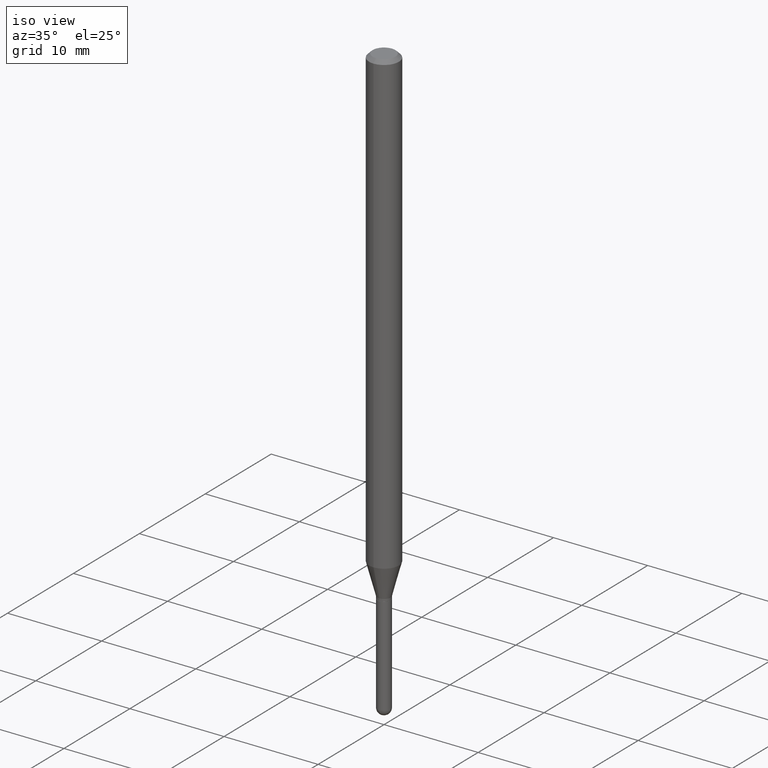
[diagram: clean part render]
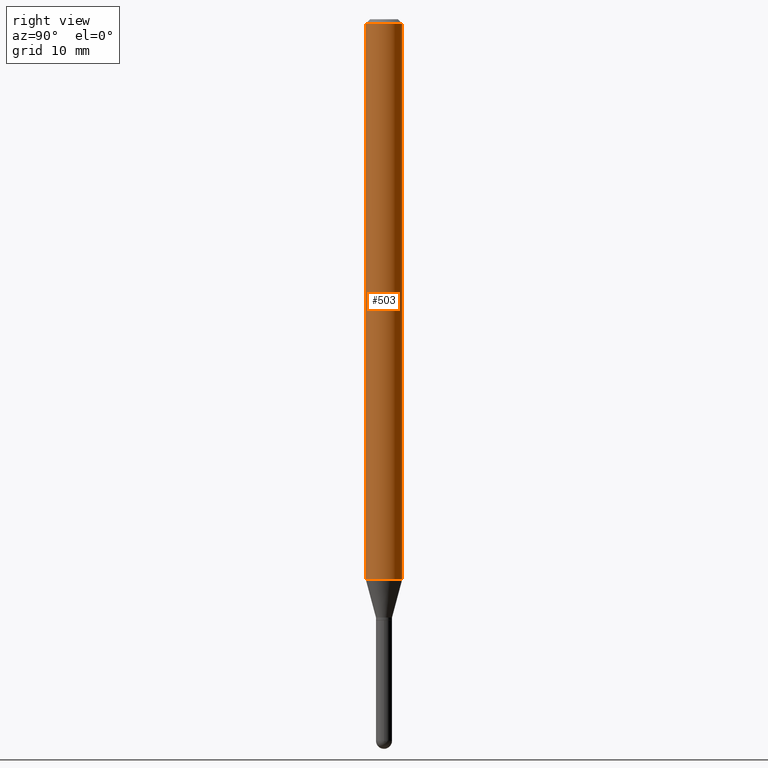
[diagram: tour spotlight — one face highlighted and labeled with its STEP entity id]
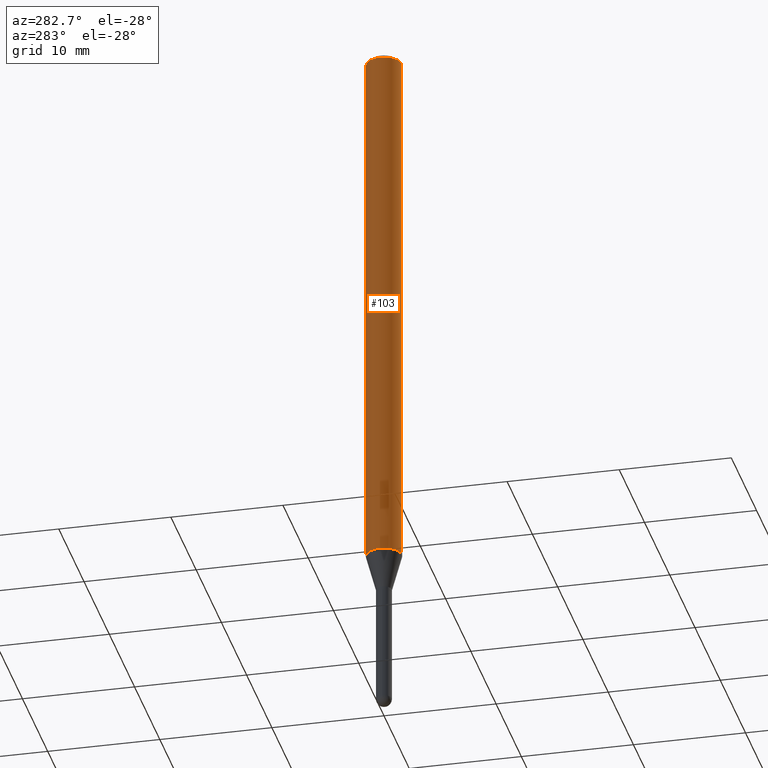
[diagram: tour spotlight — one face highlighted and labeled with its STEP entity id]
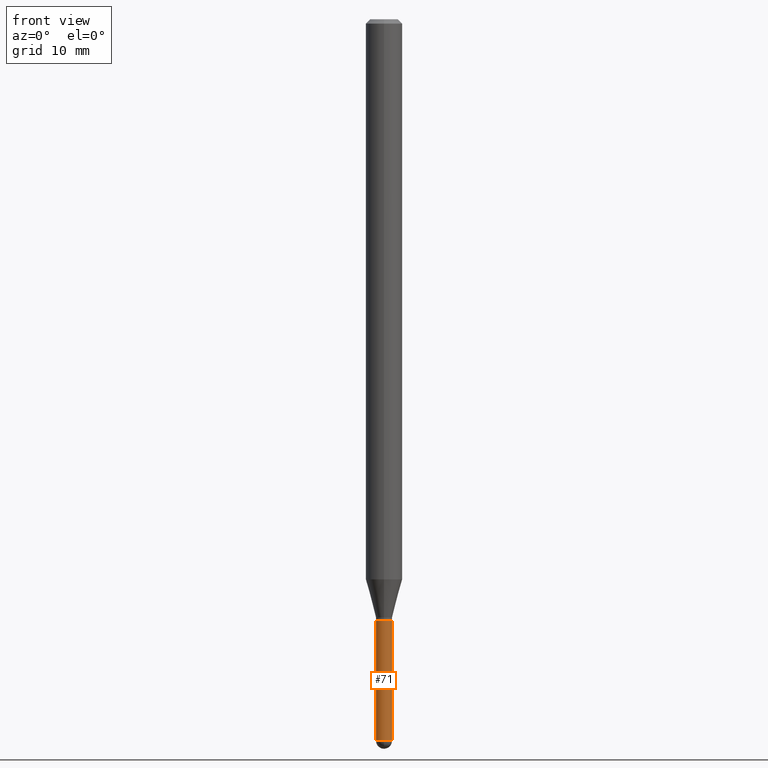
[diagram: tour spotlight — one face highlighted and labeled with its STEP entity id]
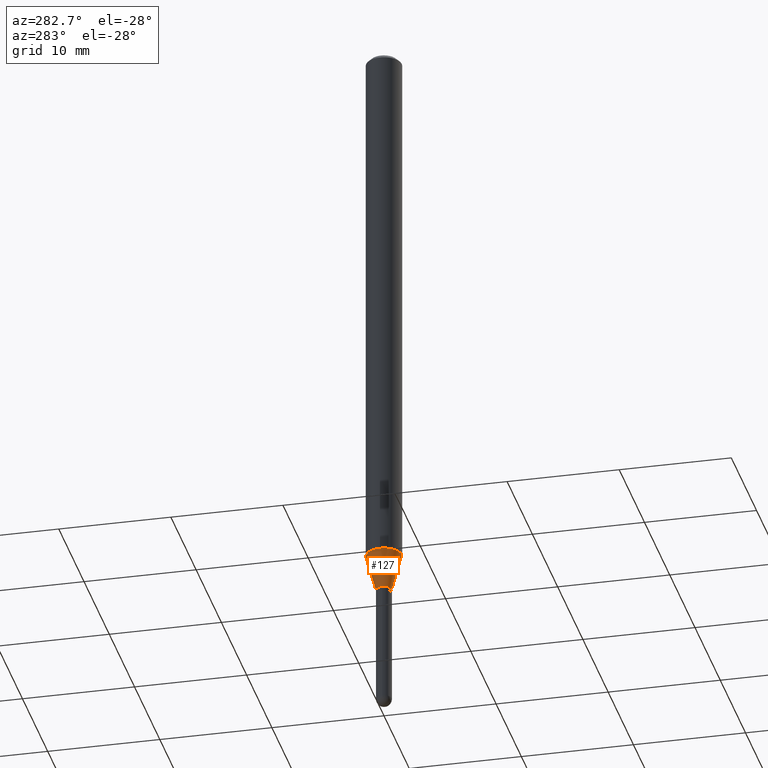
[diagram: tour spotlight — one face highlighted and labeled with its STEP entity id]
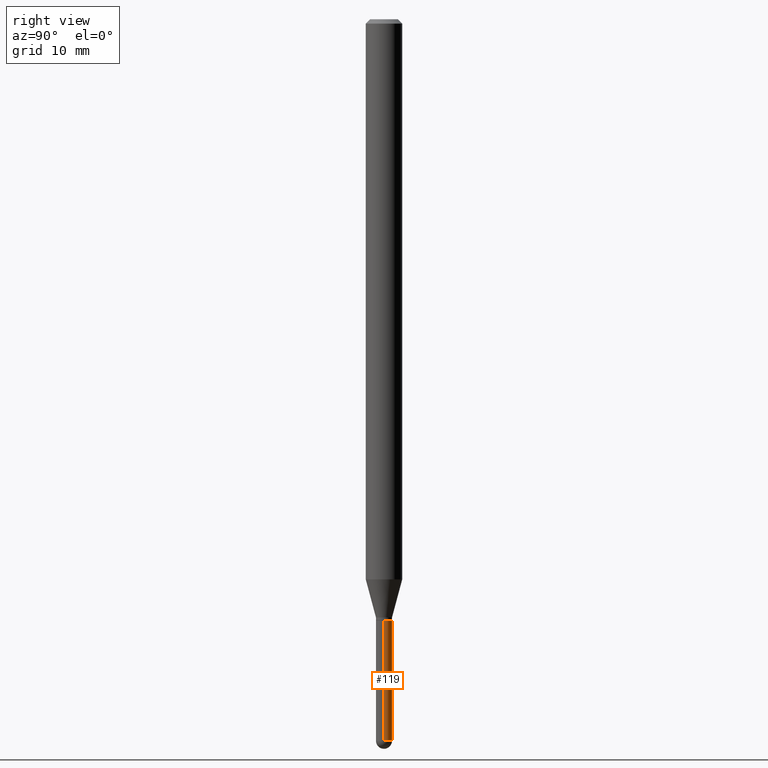
[diagram: tour spotlight — one face highlighted and labeled with its STEP entity id]
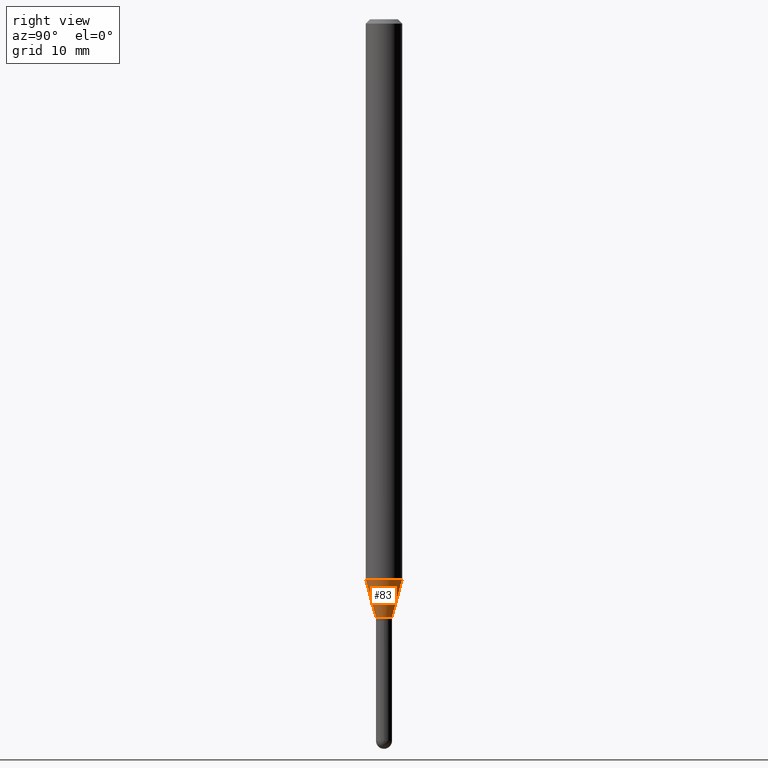
[diagram: tour spotlight — one face highlighted and labeled with its STEP entity id]
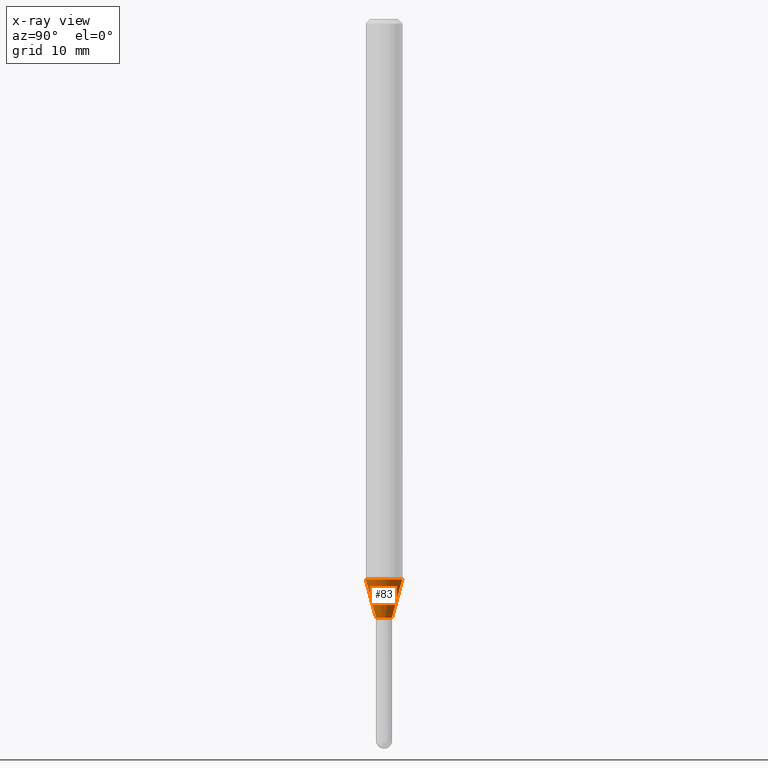
[diagram: x-ray of the same camera — body ghosted, this tour face saturated]
A machine part: a face-by-face anatomy tour. The part has 17 B-rep faces; the first image is the clean iso view, then the 6 largest visible faces are spotlighted one at a time (largest first), each with its STEP entity span.

Face 1 — right view, entity #503. In plain terms, the highlighted cylindrical surface (edge-blend (fillet) strip) has radius 1.5875 mm, axis along (-0, 0, 1).
Definition (entity closure, byte-faithful):
#20 = CARTESIAN_POINT ( 'NONE',  ( 0.000000000000000000, 0.000000000000000000, 0.000000000000000000 ) ) ;
#30 = CARTESIAN_POINT ( 'NONE',  ( 4.440892098501092576E-16, 0.06249999999999326927, -1.919378221735088985 ) ) ;
#33 = EDGE_CURVE ( 'NONE', #144, #500, #44, .T. ) ;
#44 = CIRCLE ( 'NONE', #334, 0.06250000000000000000 ) ;
#85 = VECTOR ( 'NONE', #406, 39.37007874015748143 ) ;
#88 = CARTESIAN_POINT ( 'NONE',  ( -4.364351673553448308E-16, -0.06250000000000671685, -1.919378221735088319 ) ) ;
#110 = CYLINDRICAL_SURFACE ( 'NONE', #368, 0.06250000000000000000 ) ;
#111 = EDGE_CURVE ( 'NONE', #504, #380, #466, .T. ) ;
#117 = DIRECTION ( 'NONE',  ( -2.445461654666002137E-29, 3.491491580225585399E-15, 1.000000000000000000 ) ) ;
#128 = DIRECTION ( 'NONE',  ( -6.982962677686265922E-15, -1.000000000000000000, 3.483106191921935554E-15 ) ) ;
#143 = EDGE_CURVE ( 'NONE', #144, #504, #247, .T. ) ;
#144 = VERTEX_POINT ( 'NONE', #88 ) ;
#155 = ORIENTED_EDGE ( 'NONE', *, *, #111, .F. ) ;
#168 = CARTESIAN_POINT ( 'NONE',  ( -4.364351673553916201E-16, -0.06250000000000000000, 2.182182237640990874E-16 ) ) ;
#171 = AXIS2_PLACEMENT_3D ( 'NONE', #355, #438, #128 ) ;
#184 = ORIENTED_EDGE ( 'NONE', *, *, #33, .T. ) ;
#247 = LINE ( 'NONE', #168, #85 ) ;
#248 = EDGE_LOOP ( 'NONE', ( #184, #320, #155, #292 ) ) ;
#252 = LINE ( 'NONE', #404, #316 ) ;
#266 = EDGE_CURVE ( 'NONE', #500, #380, #252, .T. ) ;
#292 = ORIENTED_EDGE ( 'NONE', *, *, #143, .F. ) ;
#293 = DIRECTION ( 'NONE',  ( -6.982962677686265922E-15, -1.000000000000000000, 3.491491580225585399E-15 ) ) ;
#307 = CARTESIAN_POINT ( 'NONE',  ( 4.693765842054179356E-29, -6.701492900456418580E-15, -1.919378221735088763 ) ) ;
#316 = VECTOR ( 'NONE', #399, 39.37007874015748143 ) ;
#320 = ORIENTED_EDGE ( 'NONE', *, *, #266, .T. ) ;
#324 = CARTESIAN_POINT ( 'NONE',  ( 4.440892098501098492E-16, 0.06249999999999995143, -0.01500000000000022669 ) ) ;
#334 = AXIS2_PLACEMENT_3D ( 'NONE', #307, #117, #426 ) ;
#355 = CARTESIAN_POINT ( 'NONE',  ( 3.668192481999005413E-31, -5.237237370338381057E-17, -0.01500000000000000812 ) ) ;
#368 = AXIS2_PLACEMENT_3D ( 'NONE', #20, #419, #293 ) ;
#380 = VERTEX_POINT ( 'NONE', #324 ) ;
#399 = DIRECTION ( 'NONE',  ( -2.445461654666002417E-29, 3.491491580225585005E-15, 1.000000000000000000 ) ) ;
#404 = CARTESIAN_POINT ( 'NONE',  ( 4.440892098500625669E-16, 0.06250000000000000000, -2.182182237640990874E-16 ) ) ;
#406 = DIRECTION ( 'NONE',  ( -2.445461654666002417E-29, 3.491491580225585005E-15, 1.000000000000000000 ) ) ;
#419 = DIRECTION ( 'NONE',  ( -2.445461654666002137E-29, 3.491491580225585399E-15, 1.000000000000000000 ) ) ;
#426 = DIRECTION ( 'NONE',  ( -6.982962677686265922E-15, -1.000000000000000000, 4.370956789862821150E-15 ) ) ;
#438 = DIRECTION ( 'NONE',  ( -2.445461654666002137E-29, 3.491491580225585399E-15, 1.000000000000000000 ) ) ;
#457 = FACE_OUTER_BOUND ( 'NONE', #248, .T. ) ;
#466 = CIRCLE ( 'NONE', #171, 0.06250000000000000000 ) ;
#491 = CARTESIAN_POINT ( 'NONE',  ( -4.364351673553912750E-16, -0.06250000000000005551, -0.01499999999999979128 ) ) ;
#500 = VERTEX_POINT ( 'NONE', #30 ) ;
#503 = ADVANCED_FACE ( 'NONE', ( #457 ), #110, .T. ) ;
#504 = VERTEX_POINT ( 'NONE', #491 ) ;

Face 2 — auxiliary view, entity #103. In plain terms, the highlighted cylindrical surface (edge-blend (fillet) strip) has radius 1.5875 mm, axis along (-0, 0, 1).
Definition (entity closure, byte-faithful):
#30 = CARTESIAN_POINT ( 'NONE',  ( 4.440892098501092576E-16, 0.06249999999999326927, -1.919378221735088985 ) ) ;
#60 = ORIENTED_EDGE ( 'NONE', *, *, #143, .T. ) ;
#77 = CIRCLE ( 'NONE', #148, 0.06250000000000000000 ) ;
#85 = VECTOR ( 'NONE', #406, 39.37007874015748143 ) ;
#88 = CARTESIAN_POINT ( 'NONE',  ( -4.364351673553448308E-16, -0.06250000000000671685, -1.919378221735088319 ) ) ;
#96 = CARTESIAN_POINT ( 'NONE',  ( 3.668192481999005413E-31, -5.237237370338381057E-17, -0.01500000000000000812 ) ) ;
#103 = ADVANCED_FACE ( 'NONE', ( #314 ), #254, .T. ) ;
#131 = CARTESIAN_POINT ( 'NONE',  ( 4.693765842054179356E-29, -6.701492900456418580E-15, -1.919378221735088763 ) ) ;
#143 = EDGE_CURVE ( 'NONE', #144, #504, #247, .T. ) ;
#144 = VERTEX_POINT ( 'NONE', #88 ) ;
#147 = ORIENTED_EDGE ( 'NONE', *, *, #390, .F. ) ;
#148 = AXIS2_PLACEMENT_3D ( 'NONE', #96, #485, #364 ) ;
#161 = EDGE_LOOP ( 'NONE', ( #498, #344, #60, #147 ) ) ;
#166 = EDGE_CURVE ( 'NONE', #500, #144, #276, .T. ) ;
#168 = CARTESIAN_POINT ( 'NONE',  ( -4.364351673553916201E-16, -0.06250000000000000000, 2.182182237640990874E-16 ) ) ;
#245 = DIRECTION ( 'NONE',  ( -6.982962677686265922E-15, -1.000000000000000000, 4.370956789862821150E-15 ) ) ;
#247 = LINE ( 'NONE', #168, #85 ) ;
#249 = AXIS2_PLACEMENT_3D ( 'NONE', #362, #398, #352 ) ;
#252 = LINE ( 'NONE', #404, #316 ) ;
#254 = CYLINDRICAL_SURFACE ( 'NONE', #249, 0.06250000000000000000 ) ;
#266 = EDGE_CURVE ( 'NONE', #500, #380, #252, .T. ) ;
#276 = CIRCLE ( 'NONE', #434, 0.06250000000000000000 ) ;
#314 = FACE_OUTER_BOUND ( 'NONE', #161, .T. ) ;
#316 = VECTOR ( 'NONE', #399, 39.37007874015748143 ) ;
#324 = CARTESIAN_POINT ( 'NONE',  ( 4.440892098501098492E-16, 0.06249999999999995143, -0.01500000000000022669 ) ) ;
#344 = ORIENTED_EDGE ( 'NONE', *, *, #166, .T. ) ;
#352 = DIRECTION ( 'NONE',  ( -6.982962677686265922E-15, -1.000000000000000000, 3.491491580225585399E-15 ) ) ;
#362 = CARTESIAN_POINT ( 'NONE',  ( 0.000000000000000000, 0.000000000000000000, 0.000000000000000000 ) ) ;
#364 = DIRECTION ( 'NONE',  ( -6.982962677686265922E-15, -1.000000000000000000, 3.483106191921935554E-15 ) ) ;
#380 = VERTEX_POINT ( 'NONE', #324 ) ;
#390 = EDGE_CURVE ( 'NONE', #380, #504, #77, .T. ) ;
#396 = DIRECTION ( 'NONE',  ( -2.445461654666002137E-29, 3.491491580225585399E-15, 1.000000000000000000 ) ) ;
#398 = DIRECTION ( 'NONE',  ( -2.445461654666002137E-29, 3.491491580225585399E-15, 1.000000000000000000 ) ) ;
#399 = DIRECTION ( 'NONE',  ( -2.445461654666002417E-29, 3.491491580225585005E-15, 1.000000000000000000 ) ) ;
#404 = CARTESIAN_POINT ( 'NONE',  ( 4.440892098500625669E-16, 0.06250000000000000000, -2.182182237640990874E-16 ) ) ;
#406 = DIRECTION ( 'NONE',  ( -2.445461654666002417E-29, 3.491491580225585005E-15, 1.000000000000000000 ) ) ;
#434 = AXIS2_PLACEMENT_3D ( 'NONE', #131, #396, #245 ) ;
#485 = DIRECTION ( 'NONE',  ( -2.445461654666002137E-29, 3.491491580225585399E-15, 1.000000000000000000 ) ) ;
#491 = CARTESIAN_POINT ( 'NONE',  ( -4.364351673553912750E-16, -0.06250000000000005551, -0.01499999999999979128 ) ) ;
#498 = ORIENTED_EDGE ( 'NONE', *, *, #266, .F. ) ;
#500 = VERTEX_POINT ( 'NONE', #30 ) ;
#504 = VERTEX_POINT ( 'NONE', #491 ) ;

Face 3 — front view, entity #71. In plain terms, the highlighted cylindrical surface (edge-blend (fillet) strip) has radius 0.6985 mm, axis along (-0, 0, 1).
Definition (entity closure, byte-faithful):
#3 = CARTESIAN_POINT ( 'NONE',  ( 0.02750000000000000014, -1.920314736363723444E-16, 1.340948613343882413E-30 ) ) ;
#18 = AXIS2_PLACEMENT_3D ( 'NONE', #472, #323, #279 ) ;
#25 = VERTEX_POINT ( 'NONE', #310 ) ;
#71 = ADVANCED_FACE ( 'NONE', ( #163 ), #509, .T. ) ;
#72 = CIRCLE ( 'NONE', #505, 0.02750000000000000014 ) ;
#87 = VERTEX_POINT ( 'NONE', #446 ) ;
#92 = DIRECTION ( 'NONE',  ( -2.445468806185136877E-29, 3.491481338843145188E-15, 1.000000000000000000 ) ) ;
#95 = DIRECTION ( 'NONE',  ( 1.000000000000000000, -6.982962677686279332E-15, 0.000000000000000000 ) ) ;
#100 = VERTEX_POINT ( 'NONE', #435 ) ;
#105 = AXIS2_PLACEMENT_3D ( 'NONE', #255, #243, #215 ) ;
#112 = DIRECTION ( 'NONE',  ( 1.000000000000000000, -6.982962677686279332E-15, 0.000000000000000000 ) ) ;
#121 = VECTOR ( 'NONE', #330, 39.37007874015748143 ) ;
#124 = ORIENTED_EDGE ( 'NONE', *, *, #370, .T. ) ;
#135 = LINE ( 'NONE', #284, #121 ) ;
#163 = FACE_OUTER_BOUND ( 'NONE', #232, .T. ) ;
#181 = EDGE_CURVE ( 'NONE', #377, #100, #72, .T. ) ;
#215 = DIRECTION ( 'NONE',  ( 1.000000000000000000, -6.982962677686279332E-15, 0.000000000000000000 ) ) ;
#218 = EDGE_CURVE ( 'NONE', #87, #300, #135, .T. ) ;
#232 = EDGE_LOOP ( 'NONE', ( #478, #400, #359, #124, #309 ) ) ;
#242 = CARTESIAN_POINT ( 'NONE',  ( 6.046421623292748621E-29, -8.632687610289675147E-15, -2.472499999999999254 ) ) ;
#243 = DIRECTION ( 'NONE',  ( -2.445468806185136597E-29, 3.491481338843145583E-15, 1.000000000000000000 ) ) ;
#255 = CARTESIAN_POINT ( 'NONE',  ( 5.037665740741381905E-29, -7.192451558016880271E-15, -2.060000000000000053 ) ) ;
#279 = DIRECTION ( 'NONE',  ( 1.000000000000000000, -6.982962677686266711E-15, 4.876176775795935793E-29 ) ) ;
#280 = LINE ( 'NONE', #3, #459 ) ;
#281 = DIRECTION ( 'NONE',  ( -2.445468806185136597E-29, 3.491481338843145583E-15, 1.000000000000000000 ) ) ;
#282 = CARTESIAN_POINT ( 'NONE',  ( -1.953992523339674261E-16, -0.02750000000000868070, -2.472499999999999254 ) ) ;
#284 = CARTESIAN_POINT ( 'NONE',  ( -0.02750000000000000014, 1.953992523340275521E-16, -1.352707149820099181E-30 ) ) ;
#294 = CARTESIAN_POINT ( 'NONE',  ( 6.046421623292748621E-29, -8.632687610289675147E-15, -2.472499999999999254 ) ) ;
#300 = VERTEX_POINT ( 'NONE', #315 ) ;
#303 = EDGE_CURVE ( 'NONE', #300, #25, #348, .T. ) ;
#309 = ORIENTED_EDGE ( 'NONE', *, *, #303, .F. ) ;
#310 = CARTESIAN_POINT ( 'NONE',  ( 0.02750000000000000014, -7.384483031653253552E-15, -2.060000000000000053 ) ) ;
#315 = CARTESIAN_POINT ( 'NONE',  ( -0.02750000000000000014, -7.717170331819249590E-15, -2.060000000000000053 ) ) ;
#323 = DIRECTION ( 'NONE',  ( -2.445468806185136597E-29, 3.491481338843145583E-15, 1.000000000000000000 ) ) ;
#326 = CIRCLE ( 'NONE', #468, 0.02750000000000000014 ) ;
#330 = DIRECTION ( 'NONE',  ( -2.445468806185136877E-29, 3.491481338843145188E-15, 1.000000000000000000 ) ) ;
#348 = CIRCLE ( 'NONE', #105, 0.02750000000000000014 ) ;
#359 = ORIENTED_EDGE ( 'NONE', *, *, #181, .T. ) ;
#370 = EDGE_CURVE ( 'NONE', #100, #25, #280, .T. ) ;
#377 = VERTEX_POINT ( 'NONE', #282 ) ;
#400 = ORIENTED_EDGE ( 'NONE', *, *, #432, .T. ) ;
#410 = DIRECTION ( 'NONE',  ( -2.445468806185136597E-29, 3.491481338843145583E-15, 1.000000000000000000 ) ) ;
#432 = EDGE_CURVE ( 'NONE', #87, #377, #326, .T. ) ;
#435 = CARTESIAN_POINT ( 'NONE',  ( 0.02750000000000000014, -8.104601057789650990E-15, -2.472499999999999254 ) ) ;
#446 = CARTESIAN_POINT ( 'NONE',  ( -0.02750000000000000014, -7.717170331819249590E-15, -2.472499999999999254 ) ) ;
#459 = VECTOR ( 'NONE', #92, 39.37007874015748143 ) ;
#468 = AXIS2_PLACEMENT_3D ( 'NONE', #294, #410, #112 ) ;
#472 = CARTESIAN_POINT ( 'NONE',  ( 0.000000000000000000, 0.000000000000000000, 0.000000000000000000 ) ) ;
#478 = ORIENTED_EDGE ( 'NONE', *, *, #218, .F. ) ;
#505 = AXIS2_PLACEMENT_3D ( 'NONE', #242, #281, #95 ) ;
#509 = CYLINDRICAL_SURFACE ( 'NONE', #18, 0.02750000000000000014 ) ;

Face 4 — auxiliary view, entity #127. In plain terms, the highlighted conical surface has half-angle 15 deg.
Definition (entity closure, byte-faithful):
#9 = ORIENTED_EDGE ( 'NONE', *, *, #313, .F. ) ;
#26 = LINE ( 'NONE', #66, #394 ) ;
#30 = CARTESIAN_POINT ( 'NONE',  ( 4.440892098501092576E-16, 0.06249999999999326927, -1.919378221735088985 ) ) ;
#43 = VECTOR ( 'NONE', #397, 39.37007874015748143 ) ;
#52 = CARTESIAN_POINT ( 'NONE',  ( 5.013196392065305278E-29, -7.157557739462450364E-15, -2.050000000000000266 ) ) ;
#65 = DIRECTION ( 'NONE',  ( -1.807323732225330139E-15, -0.2588190451025181860, 0.9659258262890689783 ) ) ;
#66 = CARTESIAN_POINT ( 'NONE',  ( -1.920314736363197372E-16, -0.02750000000000681066, -2.050000000000000266 ) ) ;
#88 = CARTESIAN_POINT ( 'NONE',  ( -4.364351673553448308E-16, -0.06250000000000671685, -1.919378221735088319 ) ) ;
#114 = AXIS2_PLACEMENT_3D ( 'NONE', #492, #458, #188 ) ;
#127 = ADVANCED_FACE ( 'NONE', ( #173 ), #311, .T. ) ;
#131 = CARTESIAN_POINT ( 'NONE',  ( 4.693765842054179356E-29, -6.701492900456418580E-15, -1.919378221735088763 ) ) ;
#136 = CARTESIAN_POINT ( 'NONE',  ( 3.197442310920924528E-16, 0.02749999999999249226, -2.050000000000000266 ) ) ;
#140 = LINE ( 'NONE', #289, #43 ) ;
#144 = VERTEX_POINT ( 'NONE', #88 ) ;
#165 = ORIENTED_EDGE ( 'NONE', *, *, #417, .T. ) ;
#166 = EDGE_CURVE ( 'NONE', #500, #144, #276, .T. ) ;
#173 = FACE_OUTER_BOUND ( 'NONE', #227, .T. ) ;
#174 = CARTESIAN_POINT ( 'NONE',  ( -1.920314736363197372E-16, -0.02750000000000681066, -2.050000000000000266 ) ) ;
#188 = DIRECTION ( 'NONE',  ( -6.982962677686266711E-15, -1.000000000000000000, 0.000000000000000000 ) ) ;
#209 = CIRCLE ( 'NONE', #114, 0.02749999999999964972 ) ;
#227 = EDGE_LOOP ( 'NONE', ( #9, #165, #470, #471 ) ) ;
#245 = DIRECTION ( 'NONE',  ( -6.982962677686265922E-15, -1.000000000000000000, 4.370956789862821150E-15 ) ) ;
#262 = VERTEX_POINT ( 'NONE', #174 ) ;
#275 = DIRECTION ( 'NONE',  ( -6.982962677686266711E-15, -1.000000000000000000, 0.000000000000000000 ) ) ;
#276 = CIRCLE ( 'NONE', #434, 0.06250000000000000000 ) ;
#288 = DIRECTION ( 'NONE',  ( -2.445461654666002137E-29, 3.491491580225585399E-15, 1.000000000000000000 ) ) ;
#289 = CARTESIAN_POINT ( 'NONE',  ( 1.953992523340751796E-16, 0.02749999999999249226, -2.050000000000000266 ) ) ;
#311 = CONICAL_SURFACE ( 'NONE', #421, 0.02749999999999964972, 0.2617993877991502960 ) ;
#313 = EDGE_CURVE ( 'NONE', #365, #500, #140, .T. ) ;
#365 = VERTEX_POINT ( 'NONE', #136 ) ;
#394 = VECTOR ( 'NONE', #65, 39.37007874015748143 ) ;
#396 = DIRECTION ( 'NONE',  ( -2.445461654666002137E-29, 3.491491580225585399E-15, 1.000000000000000000 ) ) ;
#397 = DIRECTION ( 'NONE',  ( 1.839019923739600315E-15, 0.2588190451025249583, 0.9659258262890670910 ) ) ;
#417 = EDGE_CURVE ( 'NONE', #365, #262, #209, .T. ) ;
#421 = AXIS2_PLACEMENT_3D ( 'NONE', #52, #288, #275 ) ;
#434 = AXIS2_PLACEMENT_3D ( 'NONE', #131, #396, #245 ) ;
#458 = DIRECTION ( 'NONE',  ( -2.445461654666002137E-29, 3.491491580225585399E-15, 1.000000000000000000 ) ) ;
#470 = ORIENTED_EDGE ( 'NONE', *, *, #484, .T. ) ;
#471 = ORIENTED_EDGE ( 'NONE', *, *, #166, .F. ) ;
#484 = EDGE_CURVE ( 'NONE', #262, #144, #26, .T. ) ;
#492 = CARTESIAN_POINT ( 'NONE',  ( 5.013196392065305278E-29, -7.157557739462450364E-15, -2.050000000000000266 ) ) ;
#500 = VERTEX_POINT ( 'NONE', #30 ) ;

Face 5 — right view, entity #119. In plain terms, the highlighted cylindrical surface (edge-blend (fillet) strip) has radius 0.6985 mm, axis along (-0, 0, 1).
Definition (entity closure, byte-faithful):
#3 = CARTESIAN_POINT ( 'NONE',  ( 0.02750000000000000014, -1.920314736363723444E-16, 1.340948613343882413E-30 ) ) ;
#5 = AXIS2_PLACEMENT_3D ( 'NONE', #506, #430, #512 ) ;
#8 = CIRCLE ( 'NONE', #231, 0.02750000000000000014 ) ;
#13 = FACE_OUTER_BOUND ( 'NONE', #257, .T. ) ;
#24 = EDGE_CURVE ( 'NONE', #290, #87, #341, .T. ) ;
#25 = VERTEX_POINT ( 'NONE', #310 ) ;
#40 = DIRECTION ( 'NONE',  ( -2.445468806185136597E-29, 3.491481338843145583E-15, 1.000000000000000000 ) ) ;
#64 = EDGE_CURVE ( 'NONE', #25, #300, #493, .T. ) ;
#74 = ORIENTED_EDGE ( 'NONE', *, *, #218, .T. ) ;
#87 = VERTEX_POINT ( 'NONE', #446 ) ;
#91 = CYLINDRICAL_SURFACE ( 'NONE', #286, 0.02750000000000000014 ) ;
#92 = DIRECTION ( 'NONE',  ( -2.445468806185136877E-29, 3.491481338843145188E-15, 1.000000000000000000 ) ) ;
#100 = VERTEX_POINT ( 'NONE', #435 ) ;
#119 = ADVANCED_FACE ( 'NONE', ( #13 ), #91, .T. ) ;
#121 = VECTOR ( 'NONE', #330, 39.37007874015748143 ) ;
#129 = AXIS2_PLACEMENT_3D ( 'NONE', #237, #40, #385 ) ;
#135 = LINE ( 'NONE', #284, #121 ) ;
#145 = CARTESIAN_POINT ( 'NONE',  ( 6.046421623292748621E-29, -8.632687610289675147E-15, -2.472499999999999254 ) ) ;
#164 = ORIENTED_EDGE ( 'NONE', *, *, #64, .F. ) ;
#176 = CARTESIAN_POINT ( 'NONE',  ( 0.000000000000000000, 0.000000000000000000, 0.000000000000000000 ) ) ;
#212 = ORIENTED_EDGE ( 'NONE', *, *, #425, .T. ) ;
#218 = EDGE_CURVE ( 'NONE', #87, #300, #135, .T. ) ;
#231 = AXIS2_PLACEMENT_3D ( 'NONE', #145, #452, #264 ) ;
#237 = CARTESIAN_POINT ( 'NONE',  ( 5.037665740741381905E-29, -7.192451558016880271E-15, -2.060000000000000053 ) ) ;
#251 = DIRECTION ( 'NONE',  ( 1.000000000000000000, -6.982962677686266711E-15, 4.876176775795935793E-29 ) ) ;
#257 = EDGE_LOOP ( 'NONE', ( #473, #74, #164, #469, #212 ) ) ;
#264 = DIRECTION ( 'NONE',  ( 1.000000000000000000, -6.982962677686279332E-15, 0.000000000000000000 ) ) ;
#280 = LINE ( 'NONE', #3, #459 ) ;
#284 = CARTESIAN_POINT ( 'NONE',  ( -0.02750000000000000014, 1.953992523340275521E-16, -1.352707149820099181E-30 ) ) ;
#286 = AXIS2_PLACEMENT_3D ( 'NONE', #176, #395, #251 ) ;
#290 = VERTEX_POINT ( 'NONE', #442 ) ;
#300 = VERTEX_POINT ( 'NONE', #315 ) ;
#310 = CARTESIAN_POINT ( 'NONE',  ( 0.02750000000000000014, -7.384483031653253552E-15, -2.060000000000000053 ) ) ;
#315 = CARTESIAN_POINT ( 'NONE',  ( -0.02750000000000000014, -7.717170331819249590E-15, -2.060000000000000053 ) ) ;
#330 = DIRECTION ( 'NONE',  ( -2.445468806185136877E-29, 3.491481338843145188E-15, 1.000000000000000000 ) ) ;
#341 = CIRCLE ( 'NONE', #5, 0.02750000000000000014 ) ;
#370 = EDGE_CURVE ( 'NONE', #100, #25, #280, .T. ) ;
#385 = DIRECTION ( 'NONE',  ( 1.000000000000000000, -6.982962677686279332E-15, 0.000000000000000000 ) ) ;
#395 = DIRECTION ( 'NONE',  ( -2.445468806185136597E-29, 3.491481338843145583E-15, 1.000000000000000000 ) ) ;
#425 = EDGE_CURVE ( 'NONE', #100, #290, #8, .T. ) ;
#430 = DIRECTION ( 'NONE',  ( -2.445468806185136597E-29, 3.491481338843145583E-15, 1.000000000000000000 ) ) ;
#435 = CARTESIAN_POINT ( 'NONE',  ( 0.02750000000000000014, -8.104601057789650990E-15, -2.472499999999999254 ) ) ;
#442 = CARTESIAN_POINT ( 'NONE',  ( 1.920314736364331113E-16, 0.02749999999999141673, -2.472499999999999254 ) ) ;
#446 = CARTESIAN_POINT ( 'NONE',  ( -0.02750000000000000014, -7.717170331819249590E-15, -2.472499999999999254 ) ) ;
#452 = DIRECTION ( 'NONE',  ( -2.445468806185136597E-29, 3.491481338843145583E-15, 1.000000000000000000 ) ) ;
#459 = VECTOR ( 'NONE', #92, 39.37007874015748143 ) ;
#469 = ORIENTED_EDGE ( 'NONE', *, *, #370, .F. ) ;
#473 = ORIENTED_EDGE ( 'NONE', *, *, #24, .T. ) ;
#493 = CIRCLE ( 'NONE', #129, 0.02750000000000000014 ) ;
#506 = CARTESIAN_POINT ( 'NONE',  ( 6.046421623292748621E-29, -8.632687610289675147E-15, -2.472499999999999254 ) ) ;
#512 = DIRECTION ( 'NONE',  ( 1.000000000000000000, -6.982962677686279332E-15, 0.000000000000000000 ) ) ;

Face 6 — right view, entity #83. An x-ray twin of the same camera follows (body ghosted, this face saturated) — the face is partly hidden behind the body. In plain terms, the highlighted conical surface has half-angle 15 deg.
Definition (entity closure, byte-faithful):
#1 = DIRECTION ( 'NONE',  ( -2.445461654666002137E-29, 3.491491580225585399E-15, 1.000000000000000000 ) ) ;
#26 = LINE ( 'NONE', #66, #394 ) ;
#30 = CARTESIAN_POINT ( 'NONE',  ( 4.440892098501092576E-16, 0.06249999999999326927, -1.919378221735088985 ) ) ;
#33 = EDGE_CURVE ( 'NONE', #144, #500, #44, .T. ) ;
#43 = VECTOR ( 'NONE', #397, 39.37007874015748143 ) ;
#44 = CIRCLE ( 'NONE', #334, 0.06250000000000000000 ) ;
#47 = CARTESIAN_POINT ( 'NONE',  ( 5.013196392065305278E-29, -7.157557739462450364E-15, -2.050000000000000266 ) ) ;
#58 = DIRECTION ( 'NONE',  ( -6.982962677686266711E-15, -1.000000000000000000, 0.000000000000000000 ) ) ;
#65 = DIRECTION ( 'NONE',  ( -1.807323732225330139E-15, -0.2588190451025181860, 0.9659258262890689783 ) ) ;
#66 = CARTESIAN_POINT ( 'NONE',  ( -1.920314736363197372E-16, -0.02750000000000681066, -2.050000000000000266 ) ) ;
#83 = ADVANCED_FACE ( 'NONE', ( #480 ), #305, .T. ) ;
#88 = CARTESIAN_POINT ( 'NONE',  ( -4.364351673553448308E-16, -0.06250000000000671685, -1.919378221735088319 ) ) ;
#94 = DIRECTION ( 'NONE',  ( -2.445461654666002137E-29, 3.491491580225585399E-15, 1.000000000000000000 ) ) ;
#117 = DIRECTION ( 'NONE',  ( -2.445461654666002137E-29, 3.491491580225585399E-15, 1.000000000000000000 ) ) ;
#136 = CARTESIAN_POINT ( 'NONE',  ( 3.197442310920924528E-16, 0.02749999999999249226, -2.050000000000000266 ) ) ;
#140 = LINE ( 'NONE', #289, #43 ) ;
#144 = VERTEX_POINT ( 'NONE', #88 ) ;
#154 = ORIENTED_EDGE ( 'NONE', *, *, #313, .T. ) ;
#174 = CARTESIAN_POINT ( 'NONE',  ( -1.920314736363197372E-16, -0.02750000000000681066, -2.050000000000000266 ) ) ;
#186 = ORIENTED_EDGE ( 'NONE', *, *, #33, .F. ) ;
#206 = CARTESIAN_POINT ( 'NONE',  ( 5.013196392065305278E-29, -7.157557739462450364E-15, -2.050000000000000266 ) ) ;
#207 = EDGE_LOOP ( 'NONE', ( #328, #154, #186, #381 ) ) ;
#262 = VERTEX_POINT ( 'NONE', #174 ) ;
#270 = AXIS2_PLACEMENT_3D ( 'NONE', #47, #1, #58 ) ;
#289 = CARTESIAN_POINT ( 'NONE',  ( 1.953992523340751796E-16, 0.02749999999999249226, -2.050000000000000266 ) ) ;
#305 = CONICAL_SURFACE ( 'NONE', #270, 0.02749999999999964972, 0.2617993877991502960 ) ;
#307 = CARTESIAN_POINT ( 'NONE',  ( 4.693765842054179356E-29, -6.701492900456418580E-15, -1.919378221735088763 ) ) ;
#313 = EDGE_CURVE ( 'NONE', #365, #500, #140, .T. ) ;
#328 = ORIENTED_EDGE ( 'NONE', *, *, #332, .T. ) ;
#332 = EDGE_CURVE ( 'NONE', #262, #365, #392, .T. ) ;
#334 = AXIS2_PLACEMENT_3D ( 'NONE', #307, #117, #426 ) ;
#353 = DIRECTION ( 'NONE',  ( -6.982962677686266711E-15, -1.000000000000000000, 0.000000000000000000 ) ) ;
#365 = VERTEX_POINT ( 'NONE', #136 ) ;
#381 = ORIENTED_EDGE ( 'NONE', *, *, #484, .F. ) ;
#392 = CIRCLE ( 'NONE', #401, 0.02749999999999964972 ) ;
#394 = VECTOR ( 'NONE', #65, 39.37007874015748143 ) ;
#397 = DIRECTION ( 'NONE',  ( 1.839019923739600315E-15, 0.2588190451025249583, 0.9659258262890670910 ) ) ;
#401 = AXIS2_PLACEMENT_3D ( 'NONE', #206, #94, #353 ) ;
#426 = DIRECTION ( 'NONE',  ( -6.982962677686265922E-15, -1.000000000000000000, 4.370956789862821150E-15 ) ) ;
#480 = FACE_OUTER_BOUND ( 'NONE', #207, .T. ) ;
#484 = EDGE_CURVE ( 'NONE', #262, #144, #26, .T. ) ;
#500 = VERTEX_POINT ( 'NONE', #30 ) ;